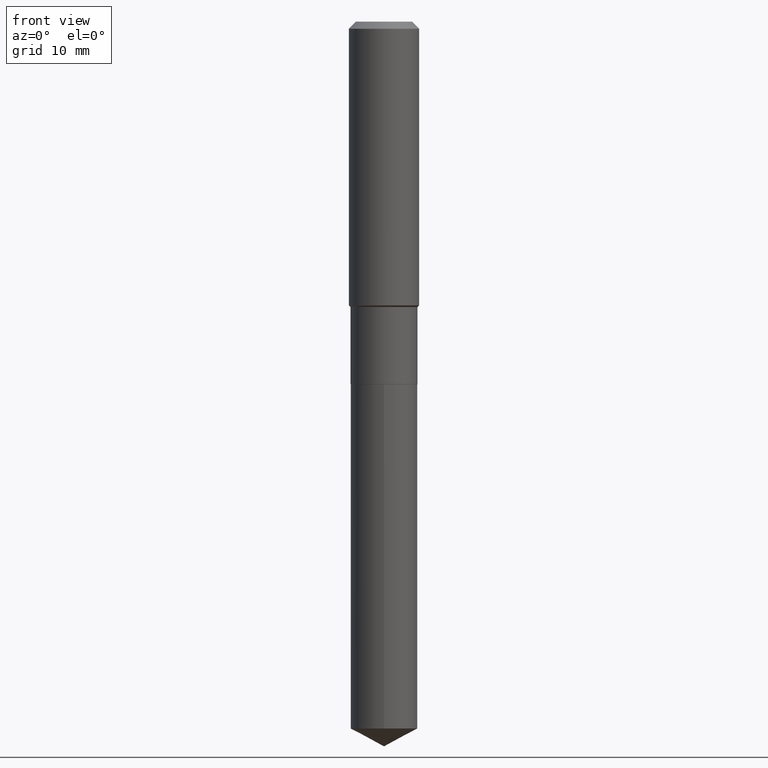
[diagram: clean part render]
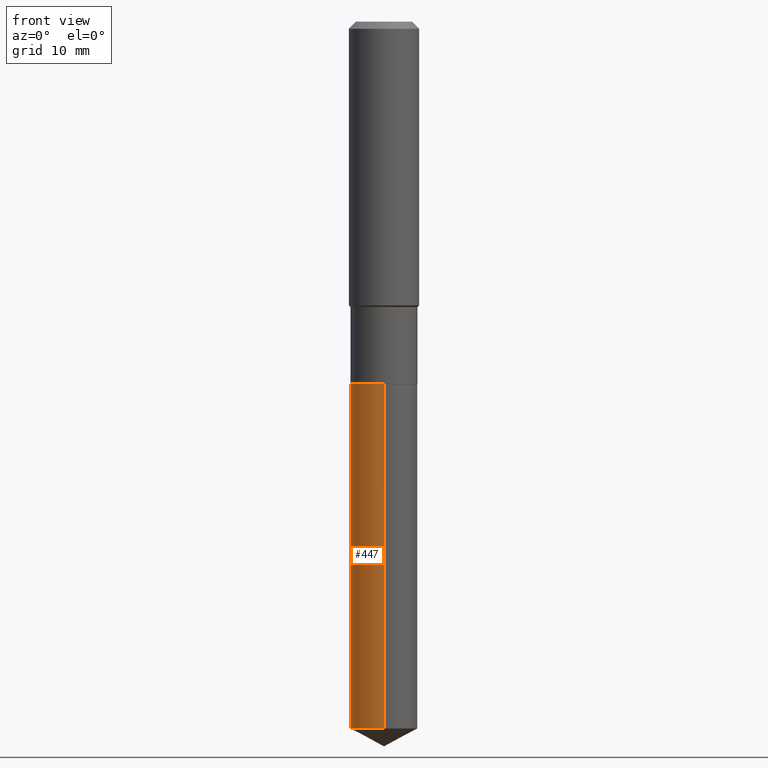
[diagram: same view with one face highlighted and labeled with its STEP entity id]
A machine part, front view. The second image highlights one B-rep face of the part: STEP entity #447.
In plain terms, the highlighted cylindrical surface (edge-blend (fillet) strip) has radius 4.7625 mm, axis along (-0, 0, 1).
Its self-contained STEP definition (entity closure, byte-faithful):
#8 = CARTESIAN_POINT ( 'NONE',  ( -1.309305502066125507E-15, -0.1875000000000070777, -2.027999999999999137 ) ) ;
#12 = CIRCLE ( 'NONE', #118, 0.1875000000000000278 ) ;
#16 = CARTESIAN_POINT ( 'NONE',  ( 1.332267629550284681E-15, 0.1874999999999929501, -2.028000000000000025 ) ) ;
#44 = CARTESIAN_POINT ( 'NONE',  ( 9.672428586867749277E-29, -1.381007963808280120E-14, -3.955304481563473473 ) ) ;
#45 = VECTOR ( 'NONE', #154, 39.37007874015748143 ) ;
#46 = LINE ( 'NONE', #8, #45 ) ;
#74 = EDGE_CURVE ( 'NONE', #242, #485, #199, .T. ) ;
#88 = DIRECTION ( 'NONE',  ( -6.982962677686265922E-15, -1.000000000000000000, 2.913971193241880372E-15 ) ) ;
#118 = AXIS2_PLACEMENT_3D ( 'NONE', #44, #149, #226 ) ;
#122 = DIRECTION ( 'NONE',  ( -2.445393498022162713E-29, 3.491589184418798595E-15, 1.000000000000000000 ) ) ;
#124 = CARTESIAN_POINT ( 'NONE',  ( 4.959410738943456063E-29, -7.080724155173897732E-15, -2.027999999999999581 ) ) ;
#135 = AXIS2_PLACEMENT_3D ( 'NONE', #283, #435, #88 ) ;
#136 = ORIENTED_EDGE ( 'NONE', *, *, #194, .F. ) ;
#149 = DIRECTION ( 'NONE',  ( -2.445393498022162713E-29, 3.491589184418798595E-15, 1.000000000000000000 ) ) ;
#154 = DIRECTION ( 'NONE',  ( -2.445393498022162713E-29, 3.491589184418798595E-15, 1.000000000000000000 ) ) ;
#167 = CIRCLE ( 'NONE', #135, 0.1875000000000000278 ) ;
#175 = EDGE_LOOP ( 'NONE', ( #376, #374, #258, #136 ) ) ;
#194 = EDGE_CURVE ( 'NONE', #485, #477, #167, .T. ) ;
#199 = LINE ( 'NONE', #476, #335 ) ;
#207 = FACE_OUTER_BOUND ( 'NONE', #175, .T. ) ;
#226 = DIRECTION ( 'NONE',  ( -6.982962677686265922E-15, -1.000000000000000000, 2.913971193241880372E-15 ) ) ;
#240 = DIRECTION ( 'NONE',  ( -2.445393498022162713E-29, 3.491589184418798595E-15, 1.000000000000000000 ) ) ;
#242 = VERTEX_POINT ( 'NONE', #449 ) ;
#258 = ORIENTED_EDGE ( 'NONE', *, *, #355, .T. ) ;
#282 = CARTESIAN_POINT ( 'NONE',  ( -1.309305502066077978E-15, -0.1875000000000137668, -3.955304481563473029 ) ) ;
#283 = CARTESIAN_POINT ( 'NONE',  ( 4.959410738943456063E-29, -7.080724155173897732E-15, -2.027999999999999581 ) ) ;
#285 = CYLINDRICAL_SURFACE ( 'NONE', #426, 0.1875000000000000278 ) ;
#335 = VECTOR ( 'NONE', #240, 39.37007874015748143 ) ;
#355 = EDGE_CURVE ( 'NONE', #467, #477, #46, .T. ) ;
#360 = DIRECTION ( 'NONE',  ( -6.982962677686265922E-15, -1.000000000000000000, 2.913971193241880372E-15 ) ) ;
#362 = EDGE_CURVE ( 'NONE', #242, #467, #12, .T. ) ;
#374 = ORIENTED_EDGE ( 'NONE', *, *, #362, .T. ) ;
#376 = ORIENTED_EDGE ( 'NONE', *, *, #74, .F. ) ;
#426 = AXIS2_PLACEMENT_3D ( 'NONE', #124, #122, #360 ) ;
#435 = DIRECTION ( 'NONE',  ( -2.445393498022162713E-29, 3.491589184418798595E-15, 1.000000000000000000 ) ) ;
#437 = CARTESIAN_POINT ( 'NONE',  ( -1.309305502066125507E-15, -0.1875000000000070777, -2.027999999999999137 ) ) ;
#447 = ADVANCED_FACE ( 'NONE', ( #207 ), #285, .T. ) ;
#449 = CARTESIAN_POINT ( 'NONE',  ( 1.332267629550284287E-15, 0.1874999999999861777, -3.955304481563474361 ) ) ;
#467 = VERTEX_POINT ( 'NONE', #282 ) ;
#476 = CARTESIAN_POINT ( 'NONE',  ( 1.332267629550237152E-15, 0.1874999999999929501, -2.028000000000000025 ) ) ;
#477 = VERTEX_POINT ( 'NONE', #437 ) ;
#485 = VERTEX_POINT ( 'NONE', #16 ) ;